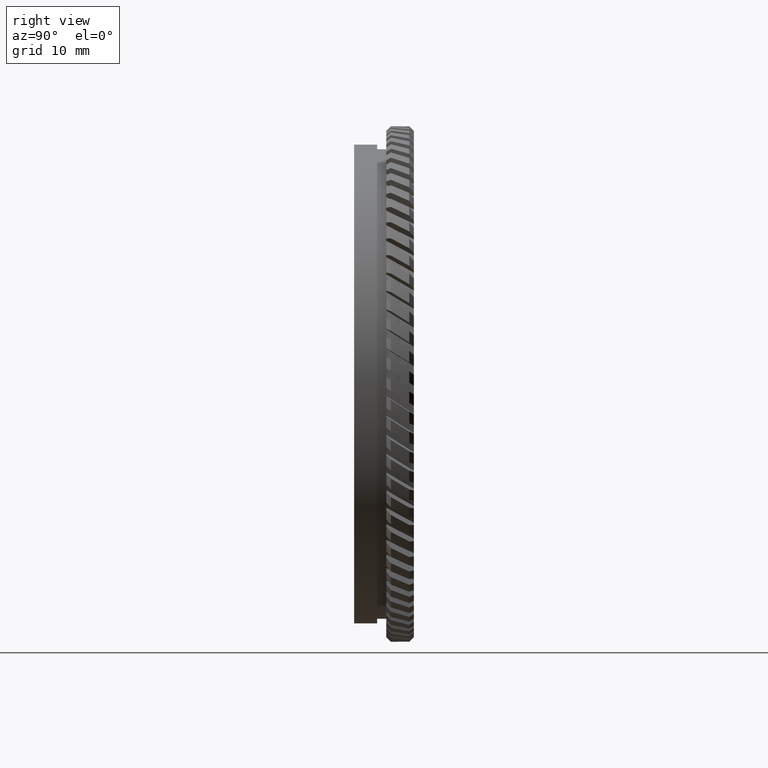
[diagram: clean part render]
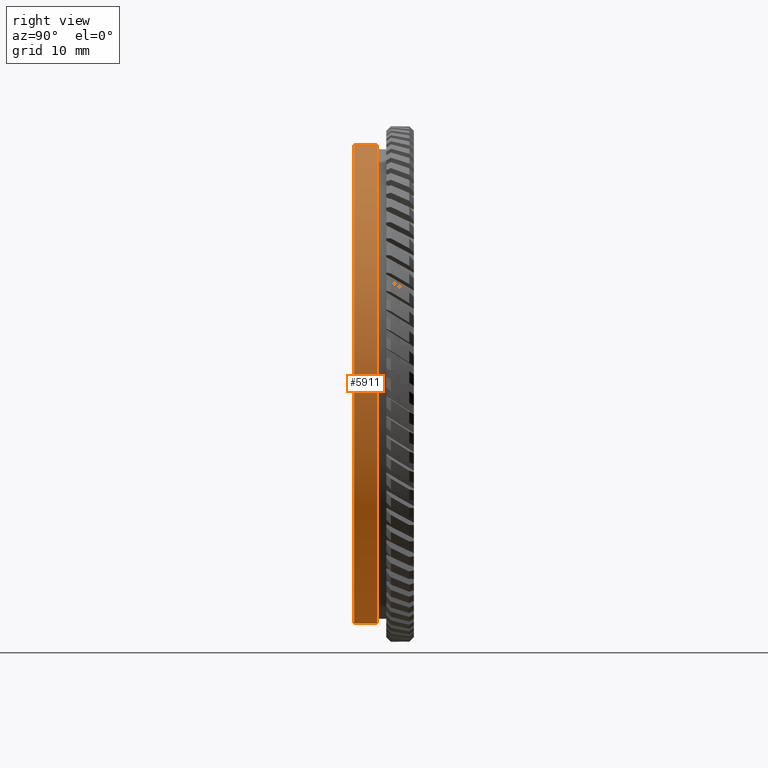
[diagram: same view with one face highlighted and labeled with its STEP entity id]
A machine part, right view. The second image highlights one B-rep face of the part: STEP entity #5911.
In plain terms, the highlighted cylindrical surface (partial cylindrical patch) has radius 26 mm, axis along (-0, 1, -0).
Its self-contained STEP definition (entity closure, byte-faithful):
#140 = EDGE_CURVE ( 'NONE', #11334, #1532, #4923, .T. ) ;
#535 = CARTESIAN_POINT ( 'NONE',  ( 0.0000000000000000000, 66.62876213592232900, 26.00000000000000400 ) ) ;
#769 = CARTESIAN_POINT ( 'NONE',  ( 0.0000000000000000000, 17.87125740523061500, 26.00000000000000700 ) ) ;
#1480 = ORIENTED_EDGE ( 'NONE', *, *, #13817, .T. ) ;
#1532 = VERTEX_POINT ( 'NONE', #769 ) ;
#2047 = DIRECTION ( 'NONE',  ( -0.0000000000000000000, 1.000000000000000000, -0.0000000000000000000 ) ) ;
#2246 = ORIENTED_EDGE ( 'NONE', *, *, #140, .F. ) ;
#4447 = AXIS2_PLACEMENT_3D ( 'NONE', #12981, #2047, #8481 ) ;
#4707 = CARTESIAN_POINT ( 'NONE',  ( 0.0000000000000000000, 15.37125740523061900, 0.0000000000000000000 ) ) ;
#4923 = LINE ( 'NONE', #535, #20022 ) ;
#5261 = AXIS2_PLACEMENT_3D ( 'NONE', #5611, #6982, #7109 ) ;
#5611 = CARTESIAN_POINT ( 'NONE',  ( 0.0000000000000000000, 66.62876213592232900, 0.0000000000000000000 ) ) ;
#5702 = CIRCLE ( 'NONE', #8720, 26.00000000000000000 ) ;
#5911 = ADVANCED_FACE ( 'NONE', ( #18902 ), #9432, .T. ) ;
#6982 = DIRECTION ( 'NONE',  ( -0.0000000000000000000, 1.000000000000000000, -0.0000000000000000000 ) ) ;
#7097 = VECTOR ( 'NONE', #17010, 1000.000000000000000 ) ;
#7109 = DIRECTION ( 'NONE',  ( 0.0000000000000000000, 0.0000000000000000000, 1.000000000000000000 ) ) ;
#7487 = ORIENTED_EDGE ( 'NONE', *, *, #11765, .T. ) ;
#7597 = LINE ( 'NONE', #7736, #7097 ) ;
#7736 = CARTESIAN_POINT ( 'NONE',  ( 3.184081677783118600E-015, 66.62876213592232900, -26.00000000000000400 ) ) ;
#8481 = DIRECTION ( 'NONE',  ( 0.0000000000000000000, 0.0000000000000000000, 1.000000000000000000 ) ) ;
#8720 = AXIS2_PLACEMENT_3D ( 'NONE', #4707, #12575, #18940 ) ;
#9432 = CYLINDRICAL_SURFACE ( 'NONE', #5261, 26.00000000000000400 ) ;
#9806 = EDGE_CURVE ( 'NONE', #1532, #11492, #15497, .T. ) ;
#10590 = EDGE_LOOP ( 'NONE', ( #7487, #1480, #12742, #2246 ) ) ;
#11334 = VERTEX_POINT ( 'NONE', #18473 ) ;
#11492 = VERTEX_POINT ( 'NONE', #14252 ) ;
#11765 = EDGE_CURVE ( 'NONE', #11334, #14056, #5702, .T. ) ;
#12575 = DIRECTION ( 'NONE',  ( -0.0000000000000000000, 1.000000000000000000, -0.0000000000000000000 ) ) ;
#12742 = ORIENTED_EDGE ( 'NONE', *, *, #9806, .F. ) ;
#12981 = CARTESIAN_POINT ( 'NONE',  ( 0.0000000000000000000, 17.87125740523061500, 0.0000000000000000000 ) ) ;
#13817 = EDGE_CURVE ( 'NONE', #14056, #11492, #7597, .T. ) ;
#14056 = VERTEX_POINT ( 'NONE', #16525 ) ;
#14252 = CARTESIAN_POINT ( 'NONE',  ( 3.184081677783119400E-015, 17.87125740523061500, -26.00000000000001100 ) ) ;
#15497 = CIRCLE ( 'NONE', #4447, 26.00000000000000700 ) ;
#16525 = CARTESIAN_POINT ( 'NONE',  ( 3.184081677783118200E-015, 15.37125740523061900, -26.00000000000000000 ) ) ;
#17010 = DIRECTION ( 'NONE',  ( -0.0000000000000000000, 1.000000000000000000, -0.0000000000000000000 ) ) ;
#17594 = DIRECTION ( 'NONE',  ( -0.0000000000000000000, 1.000000000000000000, -0.0000000000000000000 ) ) ;
#18473 = CARTESIAN_POINT ( 'NONE',  ( 0.0000000000000000000, 15.37125740523061900, 26.00000000000000000 ) ) ;
#18902 = FACE_OUTER_BOUND ( 'NONE', #10590, .T. ) ;
#18940 = DIRECTION ( 'NONE',  ( 0.0000000000000000000, 0.0000000000000000000, 1.000000000000000000 ) ) ;
#20022 = VECTOR ( 'NONE', #17594, 1000.000000000000000 ) ;